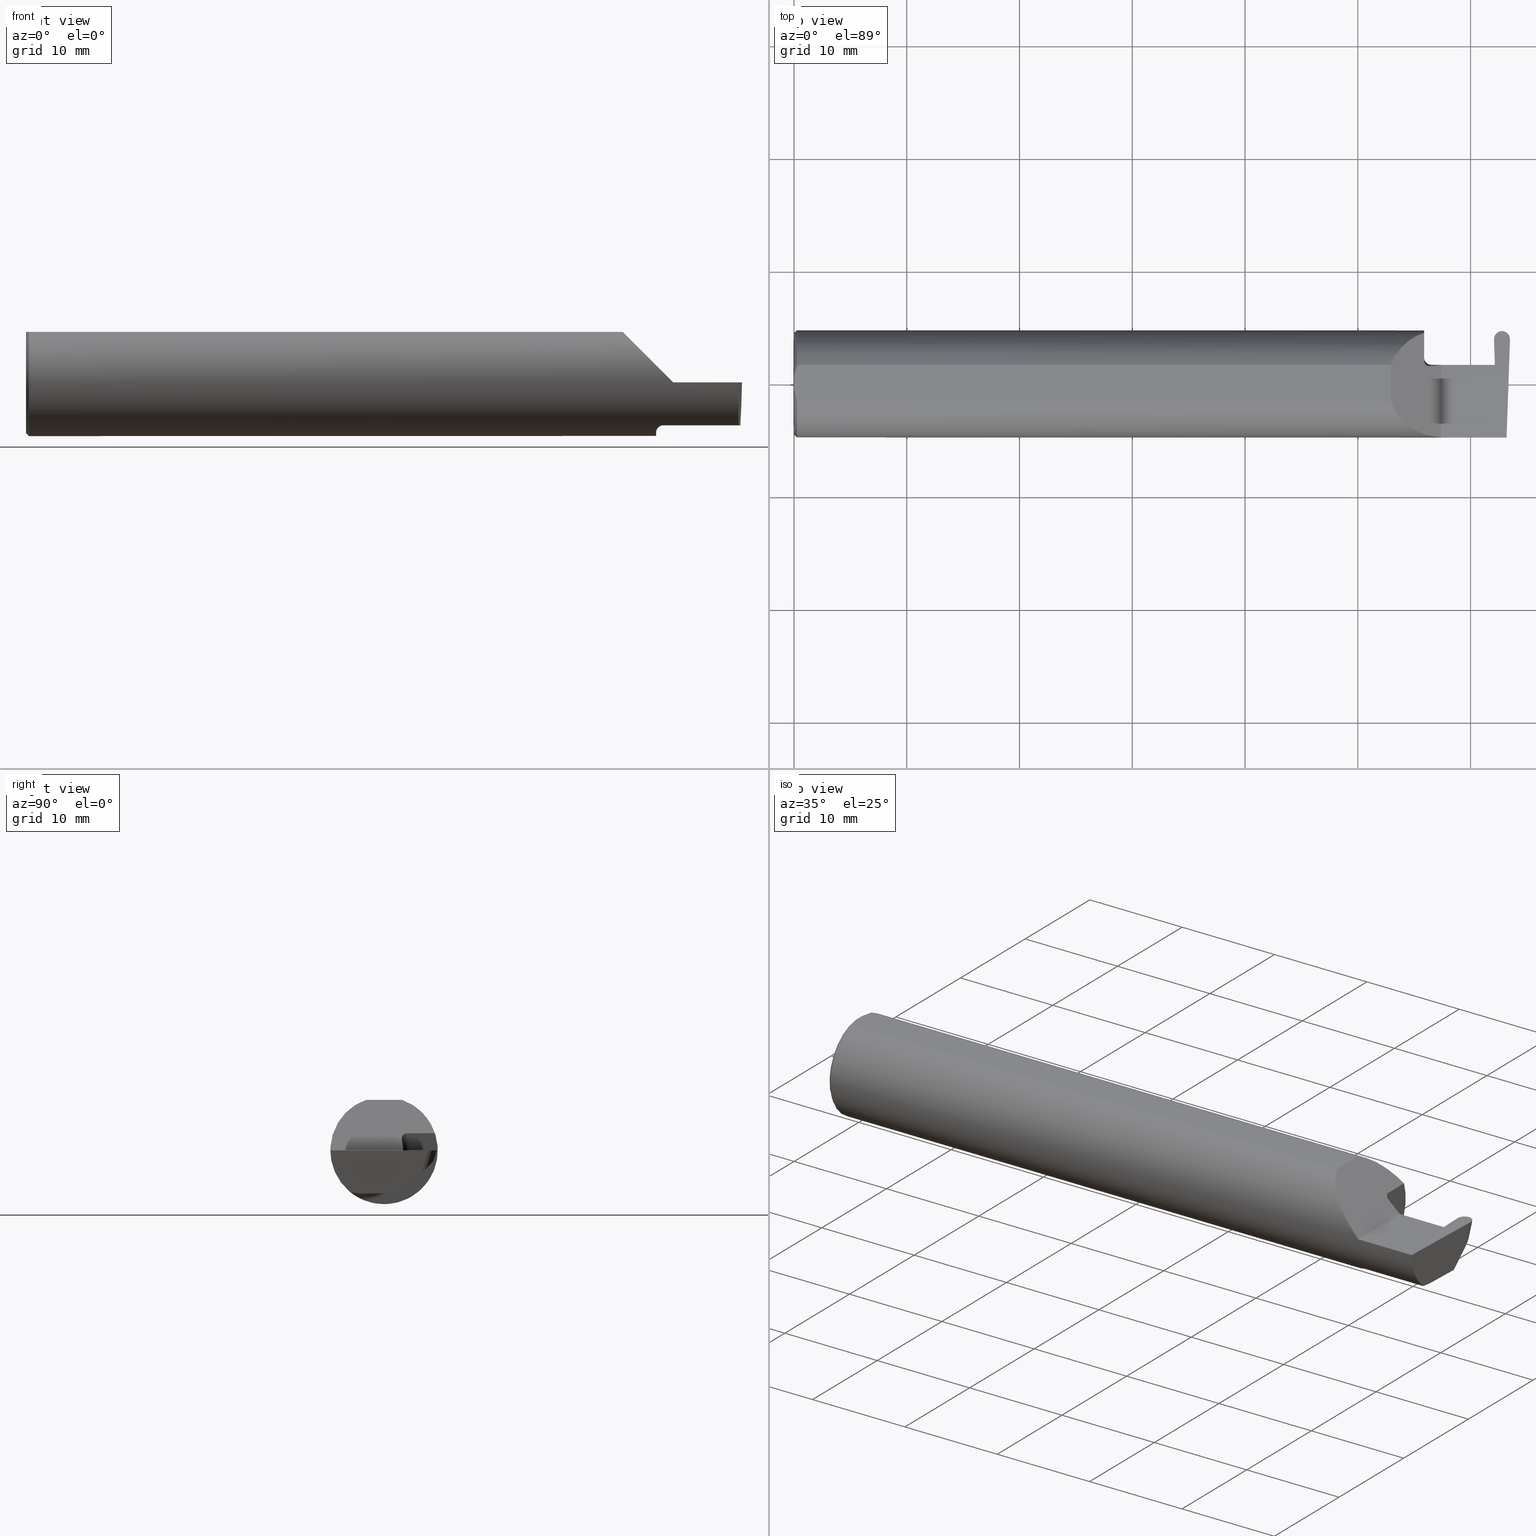
[diagram: canonical four-view strip — front | top / right | iso, engineering-drawing reading convention]
A machine part, canonical four-view strip (front | top / right | iso — engineering-drawing reading convention). The complete STEP part file that produces these views, byte-faithful:
ISO-10303-21;
HEADER;
FILE_DESCRIPTION (( 'STEP AP203' ),
    '1' );
FILE_NAME ('222134-GFR055-4.STEP',
    '2024-06-26T18:53:13',
    ( '' ),
    ( '' ),
    'SwSTEP 2.0',
    'SolidWorks 2024',
    '' );
FILE_SCHEMA (( 'CONFIG_CONTROL_DESIGN' ));
ENDSEC;

DATA;
#1 = PLANE ( 'NONE',  #171 ) ;
#2 = CARTESIAN_POINT ( 'NONE',  ( 2.488006099050898090, -0.1873499999999999888, 0.000000000000000000 ) ) ;
#3 = PRODUCT_RELATED_PRODUCT_CATEGORY ( 'detail', '', ( #263 ) ) ;
#4 = CARTESIAN_POINT ( 'NONE',  ( 2.236476718690367793, 0.06526343940705725544, 0.02352328130963212902 ) ) ;
#5 = DIRECTION ( 'NONE',  ( 0.9992386149554828290, 0.03489418134010773692, 0.01745240643728358798 ) ) ;
#6 = DIRECTION ( 'NONE',  ( -0.7071067811865441310, 0.000000000000000000, -0.7071067811865510144 ) ) ;
#7 = ORIENTED_EDGE ( 'NONE', *, *, #142, .T. ) ;
#8 = CARTESIAN_POINT ( 'NONE',  ( 2.449736488887833907, 0.06030305154315083321, -0.1500000000000000500 ) ) ;
#9 = PERSON_AND_ORGANIZATION_ROLE ( 'design_owner' ) ;
#10 = CARTESIAN_POINT ( 'NONE',  ( 2.201843912362378308, -0.08846956905169066354, -0.1652353808078973751 ) ) ;
#11 = EDGE_CURVE ( 'NONE', #127, #545, #41, .T. ) ;
#12 = APPROVAL ( #630, 'UNSPECIFIED' ) ;
#13 = AXIS2_PLACEMENT_3D ( 'NONE', #361, #637, #580 ) ;
#14 = CARTESIAN_POINT ( 'NONE',  ( 2.200000000000000178, 0.1774824568795465018, 0.05999999999999962308 ) ) ;
#15 = CARTESIAN_POINT ( 'NONE',  ( 2.200000000000000178, -0.08335000000000011844, 0.000000000000000000 ) ) ;
#16 = EDGE_CURVE ( 'NONE', #325, #697, #410, .T. ) ;
#17 = CARTESIAN_POINT ( 'NONE',  ( 2.447024025498200750, 0.06664999999999991764, 0.000000000000000000 ) ) ;
#18 = DIRECTION ( 'NONE',  ( 0.000000000000000000, -0.9998476951563912696, 0.01745240643728358451 ) ) ;
#19 = ORIENTED_EDGE ( 'NONE', *, *, #528, .T. ) ;
#20 = LINE ( 'NONE', #415, #95 ) ;
#21 = EDGE_CURVE ( 'NONE', #198, #147, #199, .T. ) ;
#22 = FACE_OUTER_BOUND ( 'NONE', #434, .T. ) ;
#23 = DIRECTION ( 'NONE',  ( 0.000000000000000000, 0.000000000000000000, -1.000000000000000000 ) ) ;
#24 = ORIENTED_EDGE ( 'NONE', *, *, #475, .T. ) ;
#25 = LINE ( 'NONE', #233, #613 ) ;
#26 = CIRCLE ( 'NONE', #157, 0.1750000000000001277 ) ;
#27 = PERSON_AND_ORGANIZATION ( #259, #395 ) ;
#28 = CARTESIAN_POINT ( 'NONE',  ( 2.225000000000000089, -0.1172600179964003314, -0.1461167706989305870 ) ) ;
#29 = ORIENTED_EDGE ( 'NONE', *, *, #92, .T. ) ;
#30 = DIRECTION ( 'NONE',  ( -0.03489949670249503644, 0.9993908270190959842, -0.000000000000000000 ) ) ;
#31 =( BOUNDED_CURVE ( )  B_SPLINE_CURVE ( 3, ( #107, #602, #396, #2 ),
 .UNSPECIFIED., .F., .T. ) 
 B_SPLINE_CURVE_WITH_KNOTS ( ( 4, 4 ),
 ( 5.852427379562163523, 6.746954780470612256 ),
 .UNSPECIFIED. ) 
 CURVE ( )  GEOMETRIC_REPRESENTATION_ITEM ( )  RATIONAL_B_SPLINE_CURVE ( ( 1.000000000000000000, 0.9344226172588800949, 0.9344226172588800949, 1.000000000000000000 ) ) 
 REPRESENTATION_ITEM ( '' )  );
#32 = EDGE_LOOP ( 'NONE', ( #537, #355, #39, #189, #111, #252 ) ) ;
#33 = ORIENTED_EDGE ( 'NONE', *, *, #87, .F. ) ;
#34 = CC_DESIGN_DATE_AND_TIME_ASSIGNMENT ( #532, #476, ( #212 ) ) ;
#35 = APPROVAL_STATUS ( 'not_yet_approved' ) ;
#36 = EDGE_LOOP ( 'NONE', ( #371, #312, #687, #56, #530 ) ) ;
#37 = EDGE_CURVE ( 'NONE', #414, #604, #258, .T. ) ;
#38 = CARTESIAN_POINT ( 'NONE',  ( 2.449781798287666845, -0.08334999999999999354, -0.1500000000000000777 ) ) ;
#39 = ORIENTED_EDGE ( 'NONE', *, *, #380, .T. ) ;
#40 = DIRECTION ( 'NONE',  ( -0.03701744261649873857, 0.7066221440565397804, 0.7066221440565479961 ) ) ;
#41 = B_SPLINE_CURVE_WITH_KNOTS ( 'NONE', 3,
 ( #673, #628, #611, #508, #671, #447, #676, #337, #10, #456, #444, #183 ),
 .UNSPECIFIED., .F., .F.,
 ( 4, 2, 2, 2, 2, 4 ),
 ( 1.967976973658592312E-07, 0.0002120314145722269742, 0.0004238660314470880540, 0.0008475352651967975283, 0.001271204498946507111, 0.001694873732696216802 ),
 .UNSPECIFIED. ) ;
#42 = ORIENTED_EDGE ( 'NONE', *, *, #167, .T. ) ;
#43 = DIRECTION ( 'NONE',  ( -0.02739170151060046909, -0.3089010440752014142, -0.9506996579664918068 ) ) ;
#44 = AXIS2_PLACEMENT_3D ( 'NONE', #174, #236, #84 ) ;
#45 = CC_DESIGN_PERSON_AND_ORGANIZATION_ASSIGNMENT ( #481, #529, ( #212 ) ) ;
#46 = ORIENTED_EDGE ( 'NONE', *, *, #592, .F. ) ;
#47 = DIRECTION ( 'NONE',  ( 0.01806679408117481400, 0.000000000000000000, -0.9998367821557817559 ) ) ;
#48 = ORIENTED_EDGE ( 'NONE', *, *, #499, .F. ) ;
#49 = EDGE_CURVE ( 'NONE', #422, #419, #277, .T. ) ;
#50 = B_SPLINE_CURVE_WITH_KNOTS ( 'NONE', 3,
 ( #54, #220, #388, #59 ),
 .UNSPECIFIED., .F., .F.,
 ( 4, 4 ),
 ( 0.01188664626022267051, 0.01304646959483758001 ),
 .UNSPECIFIED. ) ;
#51 = DIRECTION ( 'NONE',  ( -0.02739170151060047603, -0.3089010440752014142, -0.9506996579664920288 ) ) ;
#52 = CARTESIAN_POINT ( 'NONE',  ( 2.447263740745530214, 0.1948000712985011318, -0.01550298024464819013 ) ) ;
#53 = ORIENTED_EDGE ( 'NONE', *, *, #200, .T. ) ;
#54 = CARTESIAN_POINT ( 'NONE',  ( 0.000000000000000000, 0.01880691362239451242, 0.1763499999999999235 ) ) ;
#55 = CARTESIAN_POINT ( 'NONE',  ( 2.449781826481273406, -0.08343938758048886906, -0.1500000000000000500 ) ) ;
#56 = ORIENTED_EDGE ( 'NONE', *, *, #188, .F. ) ;
#57 = VECTOR ( 'NONE', #137, 39.37007874015748143 ) ;
#58 = AXIS2_PLACEMENT_3D ( 'NONE', #297, #18, #511 ) ;
#59 = CARTESIAN_POINT ( 'NONE',  ( 0.009999999999999346217, 0.06325108694718235836, 0.1763499999999999235 ) ) ;
#60 = EDGE_CURVE ( 'NONE', #374, #514, #663, .T. ) ;
#61 = CARTESIAN_POINT ( 'NONE',  ( 2.471949999999999203, 0.1818703299733175349, -0.008554944679900250773 ) ) ;
#62 = CARTESIAN_POINT ( 'NONE',  ( 2.103305020982357387, 0.1180511404724818164, 0.1566949790176410395 ) ) ;
#63 = ORIENTED_EDGE ( 'NONE', *, *, #343, .T. ) ;
#64 = CARTESIAN_POINT ( 'NONE',  ( 2.489018003393509648, -0.08334999999999895270, -0.1500000000000000500 ) ) ;
#65 = EDGE_CURVE ( 'NONE', #581, #441, #400, .T. ) ;
#66 = CARTESIAN_POINT ( 'NONE',  ( 2.471950000000000536, 0.1786780247761788898, -0.01837984983077268000 ) ) ;
#67 = VERTEX_POINT ( 'NONE', #390 ) ;
#68 = EDGE_LOOP ( 'NONE', ( #308, #311, #491, #694, #655 ) ) ;
#69 = DIRECTION ( 'NONE',  ( 0.000000000000000000, 0.000000000000000000, 1.000000000000000000 ) ) ;
#70 = APPLICATION_PROTOCOL_DEFINITION ( 'international standard', 'config_control_design', 1994, #643 ) ;
#71 = DIRECTION ( 'NONE',  ( 1.000000000000000000, -0.000000000000000000, -0.000000000000000000 ) ) ;
#72 = EDGE_CURVE ( 'NONE', #579, #471, #515, .T. ) ;
#73 = CARTESIAN_POINT ( 'NONE',  ( 2.488291197303067914, 0.1715101730526973345, -0.03879287849045227193 ) ) ;
#74 = APPROVAL_STATUS ( 'not_yet_approved' ) ;
#75 = CARTESIAN_POINT ( 'NONE',  ( 2.200000000000000178, 0.08104282222773610822, 0.05999999999999957451 ) ) ;
#76 = LINE ( 'NONE', #292, #57 ) ;
#77 = CARTESIAN_POINT ( 'NONE',  ( 2.443960049305725857, 0.1543907983005533002, 0.000000000000000000 ) ) ;
#78 = LOCAL_TIME ( 11, 53, 13.00000000000000000, #524 ) ;
#79 = CARTESIAN_POINT ( 'NONE',  ( 2.489018003393509648, -0.08334999999999895270, -0.1500000000000000500 ) ) ;
#80 = DATE_TIME_ROLE ( 'creation_date' ) ;
#81 = CARTESIAN_POINT ( 'NONE',  ( 2.260000000000000231, -0.1873499999999999888, 2.939152317953647352E-17 ) ) ;
#82 = ORIENTED_EDGE ( 'NONE', *, *, #488, .F. ) ;
#83 = AXIS2_PLACEMENT_3D ( 'NONE', #497, #224, #109 ) ;
#84 = DIRECTION ( 'NONE',  ( 1.000000000000000000, 0.000000000000000000, -0.000000000000000000 ) ) ;
#85 = CC_DESIGN_APPROVAL ( #12, ( #577 ) ) ;
#86 = DIRECTION ( 'NONE',  ( 0.000000000000000000, -0.7071067811865434649, -0.7071067811865516806 ) ) ;
#87 = EDGE_CURVE ( 'NONE', #683, #545, #26, .T. ) ;
#88 = ORIENTED_EDGE ( 'NONE', *, *, #290, .F. ) ;
#89 = CARTESIAN_POINT ( 'NONE',  ( 2.500000000000000000, -0.2500000000000000555, 0.000000000000000000 ) ) ;
#90 = ORIENTED_EDGE ( 'NONE', *, *, #368, .T. ) ;
#91 = VERTEX_POINT ( 'NONE', #617 ) ;
#92 = EDGE_CURVE ( 'NONE', #683, #198, #274, .T. ) ;
#93 = DIRECTION ( 'NONE',  ( 0.000000000000000000, -1.000000000000000000, 0.000000000000000000 ) ) ;
#94 = VECTOR ( 'NONE', #30, 39.37007874015748854 ) ;
#95 = VECTOR ( 'NONE', #248, 39.37007874015748143 ) ;
#96 = VERTEX_POINT ( 'NONE', #635 ) ;
#97 = EDGE_CURVE ( 'NONE', #374, #268, #373, .T. ) ;
#98 = CARTESIAN_POINT ( 'NONE',  ( 2.440649193535314954, 0.2362325856005324520, 0.02592953405738363665 ) ) ;
#99 = ORIENTED_EDGE ( 'NONE', *, *, #60, .T. ) ;
#100 = CARTESIAN_POINT ( 'NONE',  ( 3.749399456654646757E-32, -0.1873499999999999610, 3.061616997868383634E-16 ) ) ;
#101 = ORIENTED_EDGE ( 'NONE', *, *, #197, .F. ) ;
#102 = FACE_OUTER_BOUND ( 'NONE', #583, .T. ) ;
#103 = VECTOR ( 'NONE', #397, 39.37007874015748143 ) ;
#104 = FACE_OUTER_BOUND ( 'NONE', #495, .T. ) ;
#105 = ORIENTED_EDGE ( 'NONE', *, *, #116, .T. ) ;
#106 = DIRECTION ( 'NONE',  ( -0.03701744261649878021, -0.7066221440565397804, -0.7066221440565479961 ) ) ;
#107 = CARTESIAN_POINT ( 'NONE',  ( 2.487901662807321390, -0.1172600179964004424, -0.1461167706989304482 ) ) ;
#108 = VERTEX_POINT ( 'NONE', #81 ) ;
#109 = DIRECTION ( 'NONE',  ( 0.000000000000000000, -0.3090169943749482284, -0.9510565162951533091 ) ) ;
#110 = CARTESIAN_POINT ( 'NONE',  ( 2.200000000000000178, 0.08104282222773610822, 0.05999999999999957451 ) ) ;
#111 = ORIENTED_EDGE ( 'NONE', *, *, #603, .F. ) ;
#112 = CARTESIAN_POINT ( 'NONE',  ( 2.487901662807321390, -0.1172600179964004424, -0.1461167706989304482 ) ) ;
#113 = CARTESIAN_POINT ( 'NONE',  ( 2.260000000000000231, -0.1873499999999999888, 2.939152317953647352E-17 ) ) ;
#114 = ORIENTED_EDGE ( 'NONE', *, *, #528, .F. ) ;
#115 = VECTOR ( 'NONE', #178, 39.37007874015748854 ) ;
#116 = EDGE_CURVE ( 'NONE', #314, #127, #192, .T. ) ;
#117 = DIRECTION ( 'NONE',  ( -1.000000000000000000, -4.900301341648687270E-16, -0.000000000000000000 ) ) ;
#118 = LINE ( 'NONE', #225, #184 ) ;
#119 = CARTESIAN_POINT ( 'NONE',  ( 2.083649999999998670, 0.06325108694718283020, 0.1763499999999999235 ) ) ;
#120 = ORIENTED_EDGE ( 'NONE', *, *, #179, .F. ) ;
#121 = CARTESIAN_POINT ( 'NONE',  ( 2.471703513647399486, 0.1846500000000000363, 0.000000000000000000 ) ) ;
#122 = COORDINATED_UNIVERSAL_TIME_OFFSET ( 8, 0, .BEHIND. ) ;
#123 = CARTESIAN_POINT ( 'NONE',  ( 2.144848040052163896, 0.1588376980957759976, 0.1151519599478345868 ) ) ;
#124 = CARTESIAN_POINT ( 'NONE',  ( 2.498888753813989894, 0.1529658124618456516, -0.05733723908130414909 ) ) ;
#125 = PERSON_AND_ORGANIZATION ( #259, #395 ) ;
#126 = ADVANCED_FACE ( 'NONE', ( #584 ), #148, .F. ) ;
#127 = VERTEX_POINT ( 'NONE', #28 ) ;
#128 = VECTOR ( 'NONE', #300, 39.37007874015748854 ) ;
#129 =( GEOMETRIC_REPRESENTATION_CONTEXT ( 3 ) GLOBAL_UNCERTAINTY_ASSIGNED_CONTEXT ( ( #408 ) ) GLOBAL_UNIT_ASSIGNED_CONTEXT ( ( #466, #307, #569 ) ) REPRESENTATION_CONTEXT ( 'NONE', 'WORKASPACE' ) );
#130 = FACE_OUTER_BOUND ( 'NONE', #463, .T. ) ;
#131 = DIRECTION ( 'NONE',  ( 1.000000000000000000, 0.000000000000000000, 0.000000000000000000 ) ) ;
#132 = CARTESIAN_POINT ( 'NONE',  ( 0.000000000000000000, 0.000000000000000000, 0.000000000000000000 ) ) ;
#133 = LINE ( 'NONE', #239, #115 ) ;
#134 = CALENDAR_DATE ( 2024, 26, 6 ) ;
#135 = DIRECTION ( 'NONE',  ( -1.000000000000000000, -0.000000000000000000, -0.000000000000000000 ) ) ;
#136 = ORIENTED_EDGE ( 'NONE', *, *, #155, .T. ) ;
#137 = DIRECTION ( 'NONE',  ( 4.900301341648687270E-16, -1.000000000000000000, -4.900301341648639939E-16 ) ) ;
#138 = CALENDAR_DATE ( 2024, 26, 6 ) ;
#139 = ORIENTED_EDGE ( 'NONE', *, *, #349, .F. ) ;
#140 = VECTOR ( 'NONE', #71, 39.37007874015748143 ) ;
#141 = FACE_OUTER_BOUND ( 'NONE', #575, .T. ) ;
#142 = EDGE_CURVE ( 'NONE', #636, #579, #146, .T. ) ;
#143 = ORIENTED_EDGE ( 'NONE', *, *, #49, .F. ) ;
#144 = EDGE_CURVE ( 'NONE', #147, #581, #150, .T. ) ;
#145 = ORIENTED_EDGE ( 'NONE', *, *, #155, .F. ) ;
#146 = LINE ( 'NONE', #205, #378 ) ;
#147 = VERTEX_POINT ( 'NONE', #246 ) ;
#148 = PLANE ( 'NONE',  #565 ) ;
#149 = ORIENTED_EDGE ( 'NONE', *, *, #330, .T. ) ;
#150 = LINE ( 'NONE', #426, #335 ) ;
#151 = EDGE_LOOP ( 'NONE', ( #90, #587, #607, #385 ) ) ;
#152 = LINE ( 'NONE', #699, #409 ) ;
#153 = LINE ( 'NONE', #55, #498 ) ;
#154 = ORIENTED_EDGE ( 'NONE', *, *, #576, .F. ) ;
#155 = EDGE_CURVE ( 'NONE', #198, #127, #369, .T. ) ;
#156 = DIRECTION ( 'NONE',  ( 1.000000000000000000, 0.000000000000000000, 0.000000000000000000 ) ) ;
#157 = AXIS2_PLACEMENT_3D ( 'NONE', #15, #235, #567 ) ;
#158 = CARTESIAN_POINT ( 'NONE',  ( 2.111272250967329622, -0.1402645296119147678, 0.1487277490326685825 ) ) ;
#159 = AXIS2_PLACEMENT_3D ( 'NONE', #519, #288, #86 ) ;
#160 = ORIENTED_EDGE ( 'NONE', *, *, #608, .T. ) ;
#161 = LINE ( 'NONE', #461, #600 ) ;
#162 = LINE ( 'NONE', #279, #473 ) ;
#163 = ORIENTED_EDGE ( 'NONE', *, *, #37, .F. ) ;
#164 = CARTESIAN_POINT ( 'NONE',  ( 2.488245243745037971, -0.1061291577212404302, -0.1486999626928448004 ) ) ;
#165 = FACE_OUTER_BOUND ( 'NONE', #648, .T. ) ;
#166 = CARTESIAN_POINT ( 'NONE',  ( 2.260000000000000231, 0.06664999999999984825, 2.939152317953647352E-17 ) ) ;
#167 = EDGE_CURVE ( 'NONE', #96, #108, #631, .T. ) ;
#168 = ORIENTED_EDGE ( 'NONE', *, *, #232, .F. ) ;
#169 = DIRECTION ( 'NONE',  ( 0.000000000000000000, 0.000000000000000000, -1.000000000000000000 ) ) ;
#170 = CARTESIAN_POINT ( 'NONE',  ( 0.005151108632379595466, -0.04888864921576189376, 0.1763499999999999235 ) ) ;
#171 = AXIS2_PLACEMENT_3D ( 'NONE', #550, #5, #265 ) ;
#172 = DIRECTION ( 'NONE',  ( 0.000000000000000000, 0.000000000000000000, -1.000000000000000000 ) ) ;
#173 = PRODUCT_DEFINITION_FORMATION_WITH_SPECIFIED_SOURCE ( 'ANY', '', #263, .NOT_KNOWN. ) ;
#174 = CARTESIAN_POINT ( 'NONE',  ( 2.733184360054362827, -0.08334999999999895270, -0.1500000000000000500 ) ) ;
#175 =( LENGTH_UNIT ( ) NAMED_UNIT ( * ) SI_UNIT ( $, .METRE. ) );
#176 =( BOUNDED_CURVE ( )  B_SPLINE_CURVE ( 3, ( #185, #73, #124, #243 ),
 .UNSPECIFIED., .F., .T. ) 
 B_SPLINE_CURVE_WITH_KNOTS ( ( 4, 4 ),
 ( 3.157953889688686733, 4.726229945297545143 ),
 .UNSPECIFIED. ) 
 CURVE ( )  GEOMETRIC_REPRESENTATION_ITEM ( )  RATIONAL_B_SPLINE_CURVE ( ( 1.000000000000000000, 0.8053315133011071936, 0.8053315133011071936, 1.000000000000000000 ) ) 
 REPRESENTATION_ITEM ( '' )  );
#177 = CARTESIAN_POINT ( 'NONE',  ( -3.937007874019685528E-05, 0.1846500000000000363, 0.000000000000000000 ) ) ;
#178 = DIRECTION ( 'NONE',  ( -0.01806954526206910883, 0.01744955702544858864, 0.9996844524616943506 ) ) ;
#179 = EDGE_CURVE ( 'NONE', #377, #91, #574, .T. ) ;
#180 = LENGTH_MEASURE_WITH_UNIT ( LENGTH_MEASURE( 0.02539999999999999897 ), #175 );
#181 = VERTEX_POINT ( 'NONE', #538 ) ;
#182 = CARTESIAN_POINT ( 'NONE',  ( 0.000000000000000000, 0.1873499999999998500, 0.1763499999999999235 ) ) ;
#183 = CARTESIAN_POINT ( 'NONE',  ( 2.200000000000000178, -0.06851976604679038685, -0.1743704796142199753 ) ) ;
#184 = VECTOR ( 'NONE', #704, 39.37007874015748143 ) ;
#185 = CARTESIAN_POINT ( 'NONE',  ( 2.471950000000000536, 0.1722830110551551164, -0.03802004048799446229 ) ) ;
#186 = APPLICATION_PROTOCOL_DEFINITION ( 'international standard', 'config_control_design', 1994, #326 ) ;
#187 = CARTESIAN_POINT ( 'NONE',  ( 2.469848951832716910, 0.1789346378829039796, 0.07301982747321240919 ) ) ;
#188 = EDGE_CURVE ( 'NONE', #514, #181, #261, .T. ) ;
#189 = ORIENTED_EDGE ( 'NONE', *, *, #315, .T. ) ;
#190 = DIRECTION ( 'NONE',  ( 1.000000000000000000, 4.900301341648687270E-16, 0.000000000000000000 ) ) ;
#191 = DATE_AND_TIME ( #134, #578 ) ;
#192 = LINE ( 'NONE', #696, #394 ) ;
#193 = EDGE_LOOP ( 'NONE', ( #249, #19, #42, #431, #88, #460, #595, #82, #686, #154, #680 ) ) ;
#194 = CARTESIAN_POINT ( 'NONE',  ( 2.494034478493234008, 0.06030305154315081240, -0.1500000000000000500 ) ) ;
#195 = ORIENTED_EDGE ( 'NONE', *, *, #269, .F. ) ;
#196 = CONICAL_SURFACE ( 'NONE', #437, 0.1773500000000005072, 0.7853981633974551624 ) ;
#197 = EDGE_CURVE ( 'NONE', #604, #487, #450, .T. ) ;
#198 = VERTEX_POINT ( 'NONE', #533 ) ;
#199 =( BOUNDED_CURVE ( )  B_SPLINE_CURVE ( 3, ( #552, #4, #223, #166 ),
 .UNSPECIFIED., .F., .T. ) 
 B_SPLINE_CURVE_WITH_KNOTS ( ( 4, 4 ),
 ( 1.335292090074097437, 1.570796326794897002 ),
 .UNSPECIFIED. ) 
 CURVE ( )  GEOMETRIC_REPRESENTATION_ITEM ( )  RATIONAL_B_SPLINE_CURVE ( ( 1.000000000000000000, 0.9953834841226971708, 0.9953834841226971708, 1.000000000000000000 ) ) 
 REPRESENTATION_ITEM ( '' )  );
#200 = EDGE_CURVE ( 'NONE', #67, #209, #423, .T. ) ;
#201 = ORIENTED_EDGE ( 'NONE', *, *, #144, .F. ) ;
#202 = APPROVAL_ROLE ( '' ) ;
#203 = EDGE_LOOP ( 'NONE', ( #329, #63, #120, #365, #689 ) ) ;
#204 = MANIFOLD_SOLID_BREP ( 'Radii', #407 ) ;
#205 = CARTESIAN_POINT ( 'NONE',  ( 2.083649999999998670, -0.2500000000000000555, 0.1763499999999999235 ) ) ;
#206 = ORIENTED_EDGE ( 'NONE', *, *, #16, .T. ) ;
#207 = ADVANCED_FACE ( 'NONE', ( #486 ), #570, .T. ) ;
#208 = CARTESIAN_POINT ( 'NONE',  ( 2.083649999999998670, 0.06325108694718283020, 0.1763499999999999235 ) ) ;
#209 = VERTEX_POINT ( 'NONE', #413 ) ;
#210 = EDGE_CURVE ( 'NONE', #91, #273, #448, .T. ) ;
#211 = CARTESIAN_POINT ( 'NONE',  ( 2.499982912697886750, 0.1556210691174950700, 0.000000000000000000 ) ) ;
#212 = SECURITY_CLASSIFICATION ( '', '', #634 ) ;
#213 = DIRECTION ( 'NONE',  ( 0.000000000000000000, 0.000000000000000000, 1.000000000000000000 ) ) ;
#214 = ORIENTED_EDGE ( 'NONE', *, *, #368, .F. ) ;
#215 = CARTESIAN_POINT ( 'NONE',  ( 2.443949607349645614, 0.1545085540790380463, 0.0003624150208497920996 ) ) ;
#216 = ADVANCED_FACE ( 'NONE', ( #644 ), #196, .T. ) ;
#217 = AXIS2_PLACEMENT_3D ( 'NONE', #615, #156, #169 ) ;
#218 = CIRCLE ( 'NONE', #13, 0.1873499999999999888 ) ;
#219 = EDGE_LOOP ( 'NONE', ( #226, #206, #348, #114, #483, #139 ) ) ;
#220 = CARTESIAN_POINT ( 'NONE',  ( 0.001616639753276218755, 0.03405189565400963680, 0.1763499999999999235 ) ) ;
#221 = ADVANCED_FACE ( 'NONE', ( #102 ), #557, .T. ) ;
#222 = CARTESIAN_POINT ( 'NONE',  ( 2.437903374698175529, 0.06664999999999991764, 0.000000000000000000 ) ) ;
#223 = CARTESIAN_POINT ( 'NONE',  ( 2.248197494504676097, 0.06665000000000000091, 0.01180250549532441302 ) ) ;
#224 = DIRECTION ( 'NONE',  ( 0.000000000000000000, -0.9510565162951533091, 0.3090169943749482284 ) ) ;
#225 = CARTESIAN_POINT ( 'NONE',  ( -3.937007874019685528E-05, 0.06030305154315079852, -0.1500000000000000500 ) ) ;
#226 = ORIENTED_EDGE ( 'NONE', *, *, #315, .F. ) ;
#227 = LINE ( 'NONE', #331, #484 ) ;
#228 = MECHANICAL_CONTEXT ( 'NONE', #326, 'mechanical' ) ;
#229 = AXIS2_PLACEMENT_3D ( 'NONE', #542, #117, #605 ) ;
#230 = DIRECTION ( 'NONE',  ( -1.000000000000000000, -0.000000000000000000, -0.000000000000000000 ) ) ;
#231 = AXIS2_PLACEMENT_3D ( 'NONE', #322, #504, #47 ) ;
#232 = EDGE_CURVE ( 'NONE', #314, #436, #594, .T. ) ;
#233 = CARTESIAN_POINT ( 'NONE',  ( 2.733184360054362827, -0.08334999999999895270, -0.1500000000000000500 ) ) ;
#234 = DIRECTION ( 'NONE',  ( 0.000000000000000000, 0.000000000000000000, 1.000000000000000000 ) ) ;
#235 = DIRECTION ( 'NONE',  ( -1.000000000000000000, -4.900301341648687270E-16, -0.000000000000000000 ) ) ;
#236 = DIRECTION ( 'NONE',  ( 0.000000000000000000, 0.000000000000000000, 1.000000000000000000 ) ) ;
#237 = DATE_AND_TIME ( #513, #451 ) ;
#238 = VERTEX_POINT ( 'NONE', #652 ) ;
#239 = CARTESIAN_POINT ( 'NONE',  ( 2.447024025498200750, 0.06664999999999991764, -9.645561665750333182E-21 ) ) ;
#240 = DIRECTION ( 'NONE',  ( -1.000000000000000000, -4.900301341648687270E-16, -0.000000000000000000 ) ) ;
#241 = AXIS2_PLACEMENT_3D ( 'NONE', #681, #356, #69 ) ;
#242 = ORIENTED_EDGE ( 'NONE', *, *, #653, .F. ) ;
#243 = CARTESIAN_POINT ( 'NONE',  ( 2.497553638666706544, 0.1274799371216591426, -0.08282311442149095648 ) ) ;
#244 = PERSON_AND_ORGANIZATION_ROLE ( 'design_supplier' ) ;
#245 = ADVANCED_FACE ( 'NONE', ( #703 ), #506, .F. ) ;
#246 = CARTESIAN_POINT ( 'NONE',  ( 2.260000000000000231, 0.06664999999999984825, 2.939152317953647352E-17 ) ) ;
#247 = VERTEX_POINT ( 'NONE', #8 ) ;
#248 = DIRECTION ( 'NONE',  ( -1.000000000000000000, -0.000000000000000000, -0.000000000000000000 ) ) ;
#249 = ORIENTED_EDGE ( 'NONE', *, *, #116, .F. ) ;
#250 = ORIENTED_EDGE ( 'NONE', *, *, #60, .F. ) ;
#251 = EDGE_CURVE ( 'NONE', #108, #147, #227, .T. ) ;
#252 = ORIENTED_EDGE ( 'NONE', *, *, #653, .T. ) ;
#253 = DIRECTION ( 'NONE',  ( -0.02739170151060045522, 0.3089010440752014142, 0.9506996579664920288 ) ) ;
#254 = ORIENTED_EDGE ( 'NONE', *, *, #403, .T. ) ;
#255 = CARTESIAN_POINT ( 'NONE',  ( 2.455608802696932713, 0.1715101730526971957, -0.03879287849045232744 ) ) ;
#256 = ADVANCED_FACE ( 'NONE', ( #270 ), #1, .F. ) ;
#257 = ORIENTED_EDGE ( 'NONE', *, *, #269, .T. ) ;
#258 = CIRCLE ( 'NONE', #667, 0.1773500000000005072 ) ;
#259 = PERSON ( 'UNSPECIFIED', 'UNSPECIFIED', 'UNSPECIFIED', ('UNSPECIFIED'), ('UNSPECIFIED'), ('UNSPECIFIED') ) ;
#260 = VECTOR ( 'NONE', #546, 39.37007874015748854 ) ;
#261 = LINE ( 'NONE', #517, #303 ) ;
#262 = APPROVAL_PERSON_ORGANIZATION ( #344, #386, #293 ) ;
#263 = PRODUCT ( '222134-GFR055-4', '222134-GFR055-4', '', ( #228 ) ) ;
#264 = EDGE_LOOP ( 'NONE', ( #101, #424, #48, #160 ) ) ;
#265 = DIRECTION ( 'NONE',  ( -0.03489949670249503644, 0.9993908270190959842, 0.000000000000000000 ) ) ;
#266 = DIMENSIONAL_EXPONENTS ( 1.000000000000000000, 0.000000000000000000, 0.000000000000000000, 0.000000000000000000, 0.000000000000000000, 0.000000000000000000, 0.000000000000000000 ) ;
#267 = CARTESIAN_POINT ( 'NONE',  ( 0.000000000000000000, -0.01880691362239451242, 0.1763499999999999235 ) ) ;
#268 = VERTEX_POINT ( 'NONE', #393 ) ;
#269 = EDGE_CURVE ( 'NONE', #414, #419, #50, .T. ) ;
#270 = FACE_OUTER_BOUND ( 'NONE', #203, .T. ) ;
#271 = CARTESIAN_POINT ( 'NONE',  ( 2.200000000000000178, 0.000000000000000000, 0.000000000000000000 ) ) ;
#272 = DESIGN_CONTEXT ( 'detailed design', #643, 'design' ) ;
#273 = VERTEX_POINT ( 'NONE', #664 ) ;
#274 = B_SPLINE_CURVE_WITH_KNOTS ( 'NONE', 3,
 ( #75, #294, #593, #536, #319, #482, #688, #416, #590, #430 ),
 .UNSPECIFIED., .F., .F.,
 ( 4, 2, 2, 2, 4 ),
 ( 0.0002788109322551137045, 0.0005687008269983689825, 0.0008585907217416242606, 0.001148480616484879539, 0.001438370511228134925 ),
 .UNSPECIFIED. ) ;
#275 = ADVANCED_FACE ( 'NONE', ( #383 ), #496, .T. ) ;
#276 = CARTESIAN_POINT ( 'NONE',  ( 2.470341554657879968, 0.1371020260021961756, -0.05572771342908366954 ) ) ;
#277 = CIRCLE ( 'NONE', #358, 0.1873499999999999888 ) ;
#278 = AXIS2_PLACEMENT_3D ( 'NONE', #211, #554, #281 ) ;
#279 = CARTESIAN_POINT ( 'NONE',  ( 2.499982912697886750, 0.1556210691174950700, 0.000000000000000000 ) ) ;
#280 = VECTOR ( 'NONE', #500, 39.37007874015748143 ) ;
#281 = DIRECTION ( 'NONE',  ( -0.03489949670249509889, -0.9993908270190959842, 0.000000000000000000 ) ) ;
#282 = CARTESIAN_POINT ( 'NONE',  ( 2.437903374698175529, 0.06664999999999991764, 0.000000000000000000 ) ) ;
#283 = DIRECTION ( 'NONE',  ( 0.000000000000000000, 0.000000000000000000, -1.000000000000000000 ) ) ;
#284 = DIRECTION ( 'NONE',  ( 1.000000000000000000, 0.000000000000000000, 0.000000000000000000 ) ) ;
#285 = DIRECTION ( 'NONE',  ( 1.000000000000000000, 0.000000000000000000, -0.000000000000000000 ) ) ;
#286 = ORIENTED_EDGE ( 'NONE', *, *, #363, .F. ) ;
#287 = PLANE ( 'NONE',  #44 ) ;
#288 = DIRECTION ( 'NONE',  ( 0.000000000000000000, -0.7071067811865516806, 0.7071067811865434649 ) ) ;
#289 = CARTESIAN_POINT ( 'NONE',  ( 2.200000000000000178, 0.1774824568795465018, 0.05999999999999962308 ) ) ;
#290 = EDGE_CURVE ( 'NONE', #632, #636, #338, .T. ) ;
#291 = CC_DESIGN_PERSON_AND_ORGANIZATION_ASSIGNMENT ( #621, #566, ( #577 ) ) ;
#292 = CARTESIAN_POINT ( 'NONE',  ( 2.200000000000000178, -0.2500000000000001110, 0.05999999999999940797 ) ) ;
#293 = APPROVAL_ROLE ( '' ) ;
#294 = CARTESIAN_POINT ( 'NONE',  ( 2.199999999999999734, 0.07723724220654795691, 0.05999999999999976186 ) ) ;
#295 = ADVANCED_FACE ( 'NONE', ( #379 ), #649, .T. ) ;
#296 = CARTESIAN_POINT ( 'NONE',  ( 0.000000000000000000, 0.01880691362239451242, 0.1763499999999999235 ) ) ;
#297 = CARTESIAN_POINT ( 'NONE',  ( 2.447024025498200750, 0.06664999999999991764, 0.000000000000000000 ) ) ;
#298 = CARTESIAN_POINT ( 'NONE',  ( 2.443344681402952911, 0.1720126294265148237, 3.503485321703168162E-18 ) ) ;
#299 =( BOUNDED_CURVE ( )  B_SPLINE_CURVE ( 3, ( #61, #66, #376, #440 ),
 .UNSPECIFIED., .F., .F. ) 
 B_SPLINE_CURVE_WITH_KNOTS ( ( 4, 4 ),
 ( 1.570796326794904330, 1.601113425804760126 ),
 .UNSPECIFIED. ) 
 CURVE ( )  GEOMETRIC_REPRESENTATION_ITEM ( )  RATIONAL_B_SPLINE_CURVE ( ( 1.000000000000000000, 0.9999234075922798226, 0.9999234075922798226, 1.000000000000000000 ) ) 
 REPRESENTATION_ITEM ( '' )  );
#300 = DIRECTION ( 'NONE',  ( -0.01806954526206910883, 0.01744955702544858864, 0.9996844524616943506 ) ) ;
#301 = PERSON_AND_ORGANIZATION_ROLE ( 'creator' ) ;
#302 = CARTESIAN_POINT ( 'NONE',  ( 2.471703513647399486, 0.1846500000000000363, 0.000000000000000000 ) ) ;
#303 = VECTOR ( 'NONE', #43, 39.37007874015748854 ) ;
#304 = VECTOR ( 'NONE', #40, 39.37007874015748143 ) ;
#305 = ORIENTED_EDGE ( 'NONE', *, *, #352, .F. ) ;
#306 = CARTESIAN_POINT ( 'NONE',  ( 2.488968613720943246, 0.1846500000000000363, -2.084523217784547825E-18 ) ) ;
#307 =( NAMED_UNIT ( * ) PLANE_ANGLE_UNIT ( ) SI_UNIT ( $, .RADIAN. ) );
#308 = ORIENTED_EDGE ( 'NONE', *, *, #210, .F. ) ;
#309 = DIRECTION ( 'NONE',  ( -1.224646799147353947E-16, 0.000000000000000000, -1.000000000000000000 ) ) ;
#310 = CALENDAR_DATE ( 2024, 26, 6 ) ;
#311 = ORIENTED_EDGE ( 'NONE', *, *, #343, .F. ) ;
#312 = ORIENTED_EDGE ( 'NONE', *, *, #380, .F. ) ;
#313 = DIRECTION ( 'NONE',  ( -1.000000000000000000, -0.000000000000000000, -0.000000000000000000 ) ) ;
#314 = VERTEX_POINT ( 'NONE', #112 ) ;
#315 = EDGE_CURVE ( 'NONE', #325, #501, #152, .T. ) ;
#316 = PERSON_AND_ORGANIZATION ( #259, #395 ) ;
#317 = CARTESIAN_POINT ( 'NONE',  ( 2.445011246186010734, 0.1529658124618456239, -0.05733723908130418379 ) ) ;
#318 = ORIENTED_EDGE ( 'NONE', *, *, #576, .T. ) ;
#319 = CARTESIAN_POINT ( 'NONE',  ( 2.206491315391052144, 0.06519110945230535692, 0.05350868460894758760 ) ) ;
#320 = ORIENTED_EDGE ( 'NONE', *, *, #478, .T. ) ;
#321 = CARTESIAN_POINT ( 'NONE',  ( 2.497553638666706544, 0.1274799371216591426, -0.08282311442149095648 ) ) ;
#322 = CARTESIAN_POINT ( 'NONE',  ( 2.450028168451479083, -2.386252171265519806, -0.1234370960985020360 ) ) ;
#323 = ADVANCED_FACE ( 'NONE', ( #334 ), #375, .F. ) ;
#324 = PRODUCT_DEFINITION_SHAPE ( 'NONE', 'NONE',  #577 ) ;
#325 = VERTEX_POINT ( 'NONE', #321 ) ;
#326 = APPLICATION_CONTEXT ( 'configuration controlled 3d designs of mechanical parts and assemblies' ) ;
#327 = CARTESIAN_POINT ( 'NONE',  ( 2.469848951832716466, 0.2055642203391682965, 0.06436735163071383159 ) ) ;
#328 = CARTESIAN_POINT ( 'NONE',  ( 2.083649999999998670, -0.06325108694718283020, 0.1763499999999999235 ) ) ;
#329 = ORIENTED_EDGE ( 'NONE', *, *, #363, .T. ) ;
#330 = EDGE_CURVE ( 'NONE', #181, #374, #489, .T. ) ;
#331 = CARTESIAN_POINT ( 'NONE',  ( 2.260000000000000231, -0.2500000000000000555, 2.939152317953647352E-17 ) ) ;
#332 = CARTESIAN_POINT ( 'NONE',  ( 2.178182770154592163, -0.1873500000000000443, 0.08181722984540684696 ) ) ;
#333 = DIRECTION ( 'NONE',  ( 0.02739170151060046909, 0.3089010440752013587, 0.9506996579664918068 ) ) ;
#334 = FACE_OUTER_BOUND ( 'NONE', #219, .T. ) ;
#335 = VECTOR ( 'NONE', #372, 39.37007874015748143 ) ;
#336 = CARTESIAN_POINT ( 'NONE',  ( 2.499939950694276103, 0.1543907983005533002, 0.000000000000000000 ) ) ;
#337 = CARTESIAN_POINT ( 'NONE',  ( 2.202960551809340917, -0.09317341542745719019, -0.1626248379125198873 ) ) ;
#338 = LINE ( 'NONE', #438, #706 ) ;
#339 = DIRECTION ( 'NONE',  ( -0.03489949670249509889, -0.9993908270190959842, 0.000000000000000000 ) ) ;
#340 = EDGE_LOOP ( 'NONE', ( #525, #477, #428, #651, #480, #468, #646 ) ) ;
#341 = EDGE_LOOP ( 'NONE', ( #24, #534, #345 ) ) ;
#342 = DIRECTION ( 'NONE',  ( -1.000000000000000000, -4.900301341648687270E-16, -0.000000000000000000 ) ) ;
#343 = EDGE_CURVE ( 'NONE', #268, #91, #493, .T. ) ;
#344 = PERSON_AND_ORGANIZATION ( #259, #395 ) ;
#345 = ORIENTED_EDGE ( 'NONE', *, *, #197, .T. ) ;
#346 = CARTESIAN_POINT ( 'NONE',  ( 2.500555318597046828, 0.1720126294265149069, -3.503485321703163539E-18 ) ) ;
#347 = COORDINATED_UNIVERSAL_TIME_OFFSET ( 8, 0, .BEHIND. ) ;
#348 = ORIENTED_EDGE ( 'NONE', *, *, #539, .T. ) ;
#349 = EDGE_CURVE ( 'NONE', #501, #436, #161, .T. ) ;
#350 = LINE ( 'NONE', #572, #520 ) ;
#351 = CARTESIAN_POINT ( 'NONE',  ( 2.448662799063224149, 0.06357628547474623859, -0.09063792740366166667 ) ) ;
#352 = EDGE_CURVE ( 'NONE', #377, #209, #677, .T. ) ;
#353 = CARTESIAN_POINT ( 'NONE',  ( 2.225000000000000089, -0.08335000000000011844, 0.000000000000000000 ) ) ;
#354 = CARTESIAN_POINT ( 'NONE',  ( 2.449754845031671735, 0.002105059811798251721, -0.1500000000000001610 ) ) ;
#355 = ORIENTED_EDGE ( 'NONE', *, *, #210, .T. ) ;
#356 = DIRECTION ( 'NONE',  ( -1.000000000000000000, -0.000000000000000000, -0.000000000000000000 ) ) ;
#357 = PERSON_AND_ORGANIZATION ( #259, #395 ) ;
#358 = AXIS2_PLACEMENT_3D ( 'NONE', #404, #453, #283 ) ;
#359 = AXIS2_PLACEMENT_3D ( 'NONE', #402, #234, #131 ) ;
#360 = ORIENTED_EDGE ( 'NONE', *, *, #488, .T. ) ;
#361 = CARTESIAN_POINT ( 'NONE',  ( 0.009999999999999346217, 0.000000000000000000, 0.000000000000000000 ) ) ;
#362 = CALENDAR_DATE ( 2024, 26, 6 ) ;
#363 = EDGE_CURVE ( 'NONE', #441, #268, #620, .T. ) ;
#364 = ORIENTED_EDGE ( 'NONE', *, *, #398, .F. ) ;
#365 = ORIENTED_EDGE ( 'NONE', *, *, #352, .T. ) ;
#366 = DIRECTION ( 'NONE',  ( 0.000000000000000000, 1.000000000000000000, 0.000000000000000000 ) ) ;
#367 = ORIENTED_EDGE ( 'NONE', *, *, #11, .T. ) ;
#368 = EDGE_CURVE ( 'NONE', #436, #67, #25, .T. ) ;
#369 = CIRCLE ( 'NONE', #585, 0.1500000000000001610 ) ;
#370 = CARTESIAN_POINT ( 'NONE',  ( 2.446346361333295416, 0.1274799371216591704, -0.08282311442149094260 ) ) ;
#371 = ORIENTED_EDGE ( 'NONE', *, *, #16, .F. ) ;
#372 = DIRECTION ( 'NONE',  ( 1.000000000000000000, 4.900301341648687270E-16, 0.000000000000000000 ) ) ;
#373 =( BOUNDED_CURVE ( )  B_SPLINE_CURVE ( 3, ( #302, #691, #298, #77 ),
 .UNSPECIFIED., .F., .T. ) 
 B_SPLINE_CURVE_WITH_KNOTS ( ( 4, 4 ),
 ( 6.199081184676152212, 7.797674339294878187 ),
 .UNSPECIFIED. ) 
 CURVE ( )  GEOMETRIC_REPRESENTATION_ITEM ( )  RATIONAL_B_SPLINE_CURVE ( ( 1.000000000000000000, 0.7981407609938078185, 0.7981407609938078185, 1.000000000000000000 ) ) 
 REPRESENTATION_ITEM ( '' )  );
#374 = VERTEX_POINT ( 'NONE', #121 ) ;
#375 = PLANE ( 'NONE',  #278 ) ;
#376 = CARTESIAN_POINT ( 'NONE',  ( 2.471950000000000536, 0.1754820070127625087, -0.02820230075863699309 ) ) ;
#377 = VERTEX_POINT ( 'NONE', #672 ) ;
#378 = VECTOR ( 'NONE', #366, 39.37007874015748143 ) ;
#379 = FACE_OUTER_BOUND ( 'NONE', #36, .T. ) ;
#380 = EDGE_CURVE ( 'NONE', #273, #325, #176, .T. ) ;
#381 = CARTESIAN_POINT ( 'NONE',  ( 2.260000000000000231, -0.2500000000000000555, 2.939152317953647352E-17 ) ) ;
#382 = ORIENTED_EDGE ( 'NONE', *, *, #144, .T. ) ;
#383 = FACE_OUTER_BOUND ( 'NONE', #264, .T. ) ;
#384 = PLANE ( 'NONE',  #679 ) ;
#385 = ORIENTED_EDGE ( 'NONE', *, *, #349, .T. ) ;
#386 = APPROVAL ( #74, 'UNSPECIFIED' ) ;
#387 = CC_DESIGN_APPROVAL ( #623, ( #212 ) ) ;
#388 = CARTESIAN_POINT ( 'NONE',  ( 0.005155213631852355663, 0.04890080824240217866, 0.1763499999999999235 ) ) ;
#389 = CARTESIAN_POINT ( 'NONE',  ( 0.009999999999999346217, -0.06325108694718235836, 0.1763499999999999235 ) ) ;
#390 = CARTESIAN_POINT ( 'NONE',  ( 2.449781798287666845, -0.08334999999999999354, -0.1500000000000000777 ) ) ;
#391 = ADVANCED_FACE ( 'NONE', ( #465 ), #678, .F. ) ;
#392 = VECTOR ( 'NONE', #333, 39.37007874015748854 ) ;
#393 = CARTESIAN_POINT ( 'NONE',  ( 2.443960049305725857, 0.1543907983005533002, 0.000000000000000000 ) ) ;
#394 = VECTOR ( 'NONE', #240, 39.37007874015748143 ) ;
#395 = ORGANIZATION ( 'UNSPECIFIED', 'UNSPECIFIED', '' ) ;
#396 = CARTESIAN_POINT ( 'NONE',  ( 2.486996401427643555, -0.1873500000000000165, -0.05781030015605129885 ) ) ;
#397 = DIRECTION ( 'NONE',  ( 1.000000000000000000, -0.000000000000000000, -0.000000000000000000 ) ) ;
#398 = EDGE_CURVE ( 'NONE', #209, #441, #133, .T. ) ;
#399 = PLANE ( 'NONE',  #553 ) ;
#400 = LINE ( 'NONE', #624, #103 ) ;
#401 = CARTESIAN_POINT ( 'NONE',  ( 2.447024025498200750, 0.06664999999999991764, -9.645561665750333182E-21 ) ) ;
#402 = CARTESIAN_POINT ( 'NONE',  ( 0.000000000000000000, 0.000000000000000000, 0.000000000000000000 ) ) ;
#403 = EDGE_CURVE ( 'NONE', #697, #514, #669, .T. ) ;
#404 = CARTESIAN_POINT ( 'NONE',  ( 0.009999999999999346217, 0.000000000000000000, 0.000000000000000000 ) ) ;
#405 = DIRECTION ( 'NONE',  ( -0.000000000000000000, 1.000000000000000000, -0.000000000000000000 ) ) ;
#406 = APPROVAL_DATE_TIME ( #237, #386 ) ;
#407 = CLOSED_SHELL ( 'NONE', ( #275, #702, #427, #571, #503, #126, #216, #562, #391, #470, #221, #458, #245, #698, #256, #323, #596, #295, #207 ) ) ;
#408 = UNCERTAINTY_MEASURE_WITH_UNIT (LENGTH_MEASURE( 1.000000000000000082E-05 ), #466, 'distance_accuracy_value', 'NONE');
#409 = VECTOR ( 'NONE', #106, 39.37007874015748143 ) ;
#410 = LINE ( 'NONE', #556, #392 ) ;
#411 = ORIENTED_EDGE ( 'NONE', *, *, #65, .F. ) ;
#412 = CYLINDRICAL_SURFACE ( 'NONE', #241, 0.1873499999999999888 ) ;
#413 = CARTESIAN_POINT ( 'NONE',  ( 2.447118648061411772, 0.06655862405286416816, -0.005234924505382331644 ) ) ;
#414 = VERTEX_POINT ( 'NONE', #296 ) ;
#415 = CARTESIAN_POINT ( 'NONE',  ( 0.000000000000000000, 0.06325108694718235836, 0.1763499999999999235 ) ) ;
#416 = CARTESIAN_POINT ( 'NONE',  ( 2.219643712645606559, 0.06157137645965355538, 0.04035628735439349829 ) ) ;
#417 = EDGE_LOOP ( 'NONE', ( #367, #33, #29, #136 ) ) ;
#418 = CARTESIAN_POINT ( 'NONE',  ( 2.472196486352601585, 0.1846500000000000363, 0.000000000000000000 ) ) ;
#419 = VERTEX_POINT ( 'NONE', #670 ) ;
#420 = EDGE_CURVE ( 'NONE', #471, #683, #76, .T. ) ;
#421 = CC_DESIGN_PERSON_AND_ORGANIZATION_ASSIGNMENT ( #627, #301, ( #173 ) ) ;
#422 = VERTEX_POINT ( 'NONE', #457 ) ;
#423 =( BOUNDED_CURVE ( )  B_SPLINE_CURVE ( 3, ( #38, #354, #351, #462 ),
 .UNSPECIFIED., .F., .F. ) 
 B_SPLINE_CURVE_WITH_KNOTS ( ( 4, 4 ),
 ( 3.159045946109709124, 4.694935687864671081 ),
 .UNSPECIFIED. ) 
 CURVE ( )  GEOMETRIC_REPRESENTATION_ITEM ( )  RATIONAL_B_SPLINE_CURVE ( ( 1.000000000000000000, 0.8128932002257786005, 0.8128932002257786005, 1.000000000000000000 ) ) 
 REPRESENTATION_ITEM ( '' )  );
#424 = ORIENTED_EDGE ( 'NONE', *, *, #549, .T. ) ;
#425 = LOCAL_TIME ( 11, 53, 13.00000000000000000, #690 ) ;
#426 = CARTESIAN_POINT ( 'NONE',  ( 2.200000000000000178, 0.06664999999999995928, 3.673940397442061963E-17 ) ) ;
#427 = ADVANCED_FACE ( 'NONE', ( #560 ), #412, .T. ) ;
#428 = ORIENTED_EDGE ( 'NONE', *, *, #420, .F. ) ;
#429 = VECTOR ( 'NONE', #658, 39.37007874015748854 ) ;
#430 = CARTESIAN_POINT ( 'NONE',  ( 2.225000000000000089, 0.06250952145814826777, 0.03500000000000007272 ) ) ;
#431 = ORIENTED_EDGE ( 'NONE', *, *, #639, .T. ) ;
#432 = CARTESIAN_POINT ( 'NONE',  ( 2.225000000000000089, -0.08335000000000010456, 0.000000000000000000 ) ) ;
#433 = DIRECTION ( 'NONE',  ( -0.0003154085283454281579, 0.9999999502587288980, 0.000000000000000000 ) ) ;
#434 = EDGE_LOOP ( 'NONE', ( #364, #320, #666, #641 ) ) ;
#435 = CARTESIAN_POINT ( 'NONE',  ( 0.000000000000000000, 0.000000000000000000, 0.000000000000000000 ) ) ;
#436 = VERTEX_POINT ( 'NONE', #79 ) ;
#437 = AXIS2_PLACEMENT_3D ( 'NONE', #435, #284, #597 ) ;
#438 = CARTESIAN_POINT ( 'NONE',  ( 0.000000000000000000, -0.06325108694718235836, 0.1763499999999999235 ) ) ;
#439 = AXIS2_PLACEMENT_3D ( 'NONE', #507, #213, #285 ) ;
#440 = CARTESIAN_POINT ( 'NONE',  ( 2.471950000000000536, 0.1722830110551551164, -0.03802004048799446229 ) ) ;
#441 = VERTEX_POINT ( 'NONE', #17 ) ;
#442 = CARTESIAN_POINT ( 'NONE',  ( 2.471950000000000536, 0.1722830110551551164, -0.03802004048799446229 ) ) ;
#443 = CARTESIAN_POINT ( 'NONE',  ( 2.200000000000000178, -0.06851976604679038685, -0.1743704796142199753 ) ) ;
#444 = CARTESIAN_POINT ( 'NONE',  ( 2.199999999999999289, -0.07368234487347168071, -0.1723418180300748392 ) ) ;
#445 = CARTESIAN_POINT ( 'NONE',  ( 2.488618975064262440, -0.09477667630339343952, -0.1500000000000001887 ) ) ;
#446 = CARTESIAN_POINT ( 'NONE',  ( 0.000000000000000000, 0.000000000000000000, -0.1773500000000005072 ) ) ;
#447 = CARTESIAN_POINT ( 'NONE',  ( 2.208439486659307338, -0.1064616213911155906, -0.1542305641651502135 ) ) ;
#448 =( BOUNDED_CURVE ( )  B_SPLINE_CURVE ( 3, ( #370, #317, #255, #442 ),
 .UNSPECIFIED., .F., .T. ) 
 B_SPLINE_CURVE_WITH_KNOTS ( ( 4, 4 ),
 ( 4.698548015471835093, 6.266824071080692171 ),
 .UNSPECIFIED. ) 
 CURVE ( )  GEOMETRIC_REPRESENTATION_ITEM ( )  RATIONAL_B_SPLINE_CURVE ( ( 1.000000000000000000, 0.8053315133011074156, 0.8053315133011074156, 1.000000000000000000 ) ) 
 REPRESENTATION_ITEM ( '' )  );
#449 = CARTESIAN_POINT ( 'NONE',  ( 2.499939950694276103, 0.1543907983005533002, 0.000000000000000000 ) ) ;
#450 = CIRCLE ( 'NONE', #472, 0.1773500000000005072 ) ;
#451 = LOCAL_TIME ( 11, 53, 13.00000000000000000, #561 ) ;
#452 = PLANE ( 'NONE',  #58 ) ;
#453 = DIRECTION ( 'NONE',  ( 1.000000000000000000, 0.000000000000000000, 0.000000000000000000 ) ) ;
#454 = DIRECTION ( 'NONE',  ( -1.000000000000000000, -0.000000000000000000, -0.000000000000000000 ) ) ;
#455 = APPROVAL_ROLE ( '' ) ;
#456 = CARTESIAN_POINT ( 'NONE',  ( 2.200358271039144054, -0.07873626113568055196, -0.1700887912276896896 ) ) ;
#457 = CARTESIAN_POINT ( 'NONE',  ( 0.009999999999999346217, 0.000000000000000000, -0.1873499999999999888 ) ) ;
#458 = ADVANCED_FACE ( 'NONE', ( #518 ), #287, .F. ) ;
#459 = DATE_AND_TIME ( #138, #485 ) ;
#460 = ORIENTED_EDGE ( 'NONE', *, *, #499, .T. ) ;
#461 = CARTESIAN_POINT ( 'NONE',  ( 2.489315391880043915, -0.07483390797619461632, -0.1500000000000000500 ) ) ;
#462 = CARTESIAN_POINT ( 'NONE',  ( 2.447118648061411772, 0.06655862405286416816, -0.005234924505382331644 ) ) ;
#463 = EDGE_LOOP ( 'NONE', ( #318, #527, #599 ) ) ;
#464 = B_SPLINE_CURVE_WITH_KNOTS ( 'NONE', 3,
 ( #665, #610, #616, #282 ),
 .UNSPECIFIED., .F., .F.,
 ( 4, 4 ),
 ( 0.000000000000000000, 1.000000000000000000 ),
 .UNSPECIFIED. ) ;
#465 = FACE_OUTER_BOUND ( 'NONE', #417, .T. ) ;
#466 =( CONVERSION_BASED_UNIT ( 'INCH', #180 ) LENGTH_UNIT ( ) NAMED_UNIT ( #266 ) );
#467 = CARTESIAN_POINT ( 'NONE',  ( 0.000000000000000000, 0.000000000000000000, 0.000000000000000000 ) ) ;
#468 = ORIENTED_EDGE ( 'NONE', *, *, #639, .F. ) ;
#469 = PLANE ( 'NONE',  #586 ) ;
#470 = ADVANCED_FACE ( 'NONE', ( #130 ), #399, .T. ) ;
#471 = VERTEX_POINT ( 'NONE', #14 ) ;
#472 = AXIS2_PLACEMENT_3D ( 'NONE', #132, #313, #23 ) ;
#473 = VECTOR ( 'NONE', #339, 39.37007874015748854 ) ;
#474 = ORIENTED_EDGE ( 'NONE', *, *, #200, .F. ) ;
#475 = EDGE_CURVE ( 'NONE', #487, #414, #674, .T. ) ;
#476 = DATE_TIME_ROLE ( 'classification_date' ) ;
#477 = ORIENTED_EDGE ( 'NONE', *, *, #92, .F. ) ;
#478 = EDGE_CURVE ( 'NONE', #209, #238, #350, .T. ) ;
#479 = DIRECTION ( 'NONE',  ( 0.000000000000000000, -0.9510565162951533091, 0.3090169943749482284 ) ) ;
#480 = ORIENTED_EDGE ( 'NONE', *, *, #142, .F. ) ;
#481 = PERSON_AND_ORGANIZATION ( #259, #395 ) ;
#482 = CARTESIAN_POINT ( 'NONE',  ( 2.211575684638518169, 0.06248591091235528028, 0.04842431536148224941 ) ) ;
#483 = ORIENTED_EDGE ( 'NONE', *, *, #232, .T. ) ;
#484 = VECTOR ( 'NONE', #502, 39.37007874015748143 ) ;
#485 = LOCAL_TIME ( 11, 53, 13.00000000000000000, #122 ) ;
#486 = FACE_OUTER_BOUND ( 'NONE', #68, .T. ) ;
#487 = VERTEX_POINT ( 'NONE', #516 ) ;
#488 = EDGE_CURVE ( 'NONE', #579, #419, #20, .T. ) ;
#489 = LINE ( 'NONE', #327, #260 ) ;
#490 = CARTESIAN_POINT ( 'NONE',  ( 0.009999999999999346217, -0.06325108694718235836, 0.1763499999999999235 ) ) ;
#491 = ORIENTED_EDGE ( 'NONE', *, *, #97, .F. ) ;
#492 = CC_DESIGN_SECURITY_CLASSIFICATION ( #212, ( #173 ) ) ;
#493 = LINE ( 'NONE', #215, #429 ) ;
#494 = DIRECTION ( 'NONE',  ( -0.01299916717458325308, 0.7070470357949163454, 0.7070470357949245610 ) ) ;
#495 = EDGE_LOOP ( 'NONE', ( #548, #7, #360, #195, #512, #505 ) ) ;
#496 = CONICAL_SURFACE ( 'NONE', #217, 0.1773500000000005072, 0.7853981633974551624 ) ;
#497 = CARTESIAN_POINT ( 'NONE',  ( -3.937007874019685528E-05, 0.1846500000000000363, 0.000000000000000000 ) ) ;
#498 = VECTOR ( 'NONE', #433, 39.37007874015748143 ) ;
#499 = EDGE_CURVE ( 'NONE', #632, #422, #218, .T. ) ;
#500 = DIRECTION ( 'NONE',  ( 0.7071067811865426878, 0.000000000000000000, -0.7071067811865523467 ) ) ;
#501 = VERTEX_POINT ( 'NONE', #194 ) ;
#502 = DIRECTION ( 'NONE',  ( -0.000000000000000000, 1.000000000000000000, -0.000000000000000000 ) ) ;
#503 = ADVANCED_FACE ( 'NONE', ( #141 ), #469, .F. ) ;
#504 = DIRECTION ( 'NONE',  ( 0.9998367324388628408, 0.0003153570480505037848, 0.01806679318280284691 ) ) ;
#505 = ORIENTED_EDGE ( 'NONE', *, *, #608, .F. ) ;
#506 = PLANE ( 'NONE',  #83 ) ;
#507 = CARTESIAN_POINT ( 'NONE',  ( 2.876828993045917215, 0.1873499999999998500, 0.1763499999999999235 ) ) ;
#508 = CARTESIAN_POINT ( 'NONE',  ( 2.215028532764138802, -0.1137241120808232253, -0.1488947809299406289 ) ) ;
#509 = CARTESIAN_POINT ( 'NONE',  ( 2.200000000000000178, 0.1873499999999999888, 0.000000000000000000 ) ) ;
#510 = AXIS2_PLACEMENT_3D ( 'NONE', #271, #662, #606 ) ;
#511 = DIRECTION ( 'NONE',  ( 0.000000000000000000, -0.01745240643728358451, -0.9998476951563912696 ) ) ;
#512 = ORIENTED_EDGE ( 'NONE', *, *, #475, .F. ) ;
#513 = CALENDAR_DATE ( 2024, 26, 6 ) ;
#514 = VERTEX_POINT ( 'NONE', #418 ) ;
#515 =( BOUNDED_CURVE ( )  B_SPLINE_CURVE ( 3, ( #119, #62, #123, #289 ),
 .UNSPECIFIED., .F., .T. ) 
 B_SPLINE_CURVE_WITH_KNOTS ( ( 4, 4 ),
 ( 0.3443758272561143752, 1.244796402594305018 ),
 .UNSPECIFIED. ) 
 CURVE ( )  GEOMETRIC_REPRESENTATION_ITEM ( )  RATIONAL_B_SPLINE_CURVE ( ( 1.000000000000000000, 0.9335704097038357574, 0.9335704097038357574, 1.000000000000000000 ) ) 
 REPRESENTATION_ITEM ( '' )  );
#516 = CARTESIAN_POINT ( 'NONE',  ( 0.000000000000000000, -0.01880691362239451242, 0.1763499999999999235 ) ) ;
#517 = CARTESIAN_POINT ( 'NONE',  ( 2.470341554657879080, 0.1637316084584604647, -0.06438018927158220550 ) ) ;
#518 = FACE_OUTER_BOUND ( 'NONE', #151, .T. ) ;
#519 = CARTESIAN_POINT ( 'NONE',  ( -3.937007874019685528E-05, 0.1723030515431495657, -0.03799999999999999906 ) ) ;
#520 = VECTOR ( 'NONE', #568, 39.37007874015748143 ) ;
#521 = DIRECTION ( 'NONE',  ( 1.000000000000000000, 0.000000000000000000, 0.000000000000000000 ) ) ;
#522 = ORIENTED_EDGE ( 'NONE', *, *, #582, .F. ) ;
#523 = DIRECTION ( 'NONE',  ( 4.900301341648687270E-16, -1.000000000000000000, 0.000000000000000000 ) ) ;
#524 = COORDINATED_UNIVERSAL_TIME_OFFSET ( 8, 0, .BEHIND. ) ;
#525 = ORIENTED_EDGE ( 'NONE', *, *, #21, .F. ) ;
#526 = SHAPE_DEFINITION_REPRESENTATION ( #324, #695 ) ;
#527 = ORIENTED_EDGE ( 'NONE', *, *, #420, .T. ) ;
#528 = EDGE_CURVE ( 'NONE', #314, #96, #31, .T. ) ;
#529 = PERSON_AND_ORGANIZATION_ROLE ( 'classification_officer' ) ;
#530 = ORIENTED_EDGE ( 'NONE', *, *, #403, .F. ) ;
#531 = CC_DESIGN_PERSON_AND_ORGANIZATION_ASSIGNMENT ( #125, #9, ( #263 ) ) ;
#532 = DATE_AND_TIME ( #362, #78 ) ;
#533 = CARTESIAN_POINT ( 'NONE',  ( 2.225000000000000089, 0.06250952145814826777, 0.03500000000000007272 ) ) ;
#534 = ORIENTED_EDGE ( 'NONE', *, *, #37, .T. ) ;
#535 = DATE_AND_TIME ( #310, #425 ) ;
#536 = CARTESIAN_POINT ( 'NONE',  ( 2.204146777195072016, 0.06733032564037061407, 0.05585322280492721614 ) ) ;
#537 = ORIENTED_EDGE ( 'NONE', *, *, #179, .T. ) ;
#538 = CARTESIAN_POINT ( 'NONE',  ( 2.471949999999999203, 0.1818703299733175349, -0.008554944679900250773 ) ) ;
#539 = EDGE_CURVE ( 'NONE', #697, #96, #162, .T. ) ;
#540 = EDGE_LOOP ( 'NONE', ( #701, #163, #257, #143 ) ) ;
#541 = AXIS2_PLACEMENT_3D ( 'NONE', #353, #342, #523 ) ;
#542 = CARTESIAN_POINT ( 'NONE',  ( 2.200000000000000178, -0.08335000000000011844, 0.000000000000000000 ) ) ;
#543 = CARTESIAN_POINT ( 'NONE',  ( 0.001595548104417217512, -0.03385300050298979679, 0.1763499999999999235 ) ) ;
#544 = EDGE_CURVE ( 'NONE', #181, #273, #299, .T. ) ;
#545 = VERTEX_POINT ( 'NONE', #443 ) ;
#546 = DIRECTION ( 'NONE',  ( -0.02739170151060044828, 0.3089010440752014142, 0.9506996579664918068 ) ) ;
#547 = LINE ( 'NONE', #52, #693 ) ;
#548 = ORIENTED_EDGE ( 'NONE', *, *, #290, .T. ) ;
#549 = EDGE_CURVE ( 'NONE', #604, #422, #700, .T. ) ;
#550 = CARTESIAN_POINT ( 'NONE',  ( 2.443917087302114766, 0.1556210691174950977, 0.000000000000000000 ) ) ;
#551 = FACE_OUTER_BOUND ( 'NONE', #32, .T. ) ;
#552 = CARTESIAN_POINT ( 'NONE',  ( 2.225000000000000089, 0.06250952145814826777, 0.03500000000000007272 ) ) ;
#553 = AXIS2_PLACEMENT_3D ( 'NONE', #509, #190, #629 ) ;
#554 = DIRECTION ( 'NONE',  ( -0.9992386149554828290, 0.03489418134010779937, 0.01745240643728358798 ) ) ;
#555 = DIRECTION ( 'NONE',  ( -0.7071067811865509034, 0.000000000000000000, 0.7071067811865440200 ) ) ;
#556 = CARTESIAN_POINT ( 'NONE',  ( 2.499950392650356346, 0.1545085540790380463, 0.0003624150208497804986 ) ) ;
#557 = CYLINDRICAL_SURFACE ( 'NONE', #229, 0.1500000000000000777 ) ;
#558 = FACE_OUTER_BOUND ( 'NONE', #340, .T. ) ;
#559 = CARTESIAN_POINT ( 'NONE',  ( 0.000000000000000000, 0.000000000000000000, 0.000000000000000000 ) ) ;
#560 = FACE_OUTER_BOUND ( 'NONE', #193, .T. ) ;
#561 = COORDINATED_UNIVERSAL_TIME_OFFSET ( 8, 0, .BEHIND. ) ;
#562 = ADVANCED_FACE ( 'NONE', ( #104 ), #659, .T. ) ;
#563 = EDGE_LOOP ( 'NONE', ( #705, #149, #99 ) ) ;
#564 = CARTESIAN_POINT ( 'NONE',  ( 2.472196486352601585, 0.1846500000000000363, 0.000000000000000000 ) ) ;
#565 = AXIS2_PLACEMENT_3D ( 'NONE', #467, #521, #647 ) ;
#566 = PERSON_AND_ORGANIZATION_ROLE ( 'creator' ) ;
#567 = DIRECTION ( 'NONE',  ( 0.000000000000000000, -1.000000000000000000, 0.000000000000000000 ) ) ;
#568 = DIRECTION ( 'NONE',  ( -1.000000000000000000, -4.900301341648687270E-16, -0.000000000000000000 ) ) ;
#569 =( NAMED_UNIT ( * ) SI_UNIT ( $, .STERADIAN. ) SOLID_ANGLE_UNIT ( ) );
#570 = CYLINDRICAL_SURFACE ( 'NONE', #656, 0.02800000000000000405 ) ;
#571 = ADVANCED_FACE ( 'NONE', ( #558 ), #384, .F. ) ;
#572 = CARTESIAN_POINT ( 'NONE',  ( 2.200000000000000178, 0.06655862405286427919, -0.005234924505376314756 ) ) ;
#573 = APPROVAL_DATE_TIME ( #191, #12 ) ;
#574 = LINE ( 'NONE', #98, #304 ) ;
#575 = EDGE_LOOP ( 'NONE', ( #250, #685, #286, #411, #201, #638, #640, #660, #254 ) ) ;
#576 = EDGE_CURVE ( 'NONE', #545, #471, #657, .T. ) ;
#577 = PRODUCT_DEFINITION ( 'UNKNOWN', '', #173, #272 ) ;
#578 = LOCAL_TIME ( 11, 53, 13.00000000000000000, #347 ) ;
#579 = VERTEX_POINT ( 'NONE', #208 ) ;
#580 = DIRECTION ( 'NONE',  ( 0.000000000000000000, 0.000000000000000000, -1.000000000000000000 ) ) ;
#581 = VERTEX_POINT ( 'NONE', #222 ) ;
#582 = EDGE_CURVE ( 'NONE', #238, #581, #464, .T. ) ;
#583 = EDGE_LOOP ( 'NONE', ( #105, #145, #619, #382, #522, #591, #474, #214, #168 ) ) ;
#584 = FACE_OUTER_BOUND ( 'NONE', #341, .T. ) ;
#585 = AXIS2_PLACEMENT_3D ( 'NONE', #432, #682, #93 ) ;
#586 = AXIS2_PLACEMENT_3D ( 'NONE', #89, #309, #684 ) ;
#587 = ORIENTED_EDGE ( 'NONE', *, *, #592, .T. ) ;
#588 = CC_DESIGN_DATE_AND_TIME_ASSIGNMENT ( #459, #80, ( #577 ) ) ;
#589 = APPROVAL_DATE_TIME ( #535, #623 ) ;
#590 = CARTESIAN_POINT ( 'NONE',  ( 2.222331837506049901, 0.06186927743178083361, 0.03766816249395005256 ) ) ;
#591 = ORIENTED_EDGE ( 'NONE', *, *, #478, .F. ) ;
#592 = EDGE_CURVE ( 'NONE', #67, #247, #153, .T. ) ;
#593 = CARTESIAN_POINT ( 'NONE',  ( 2.200842198961673102, 0.07338839382613032702, 0.05915780103832719850 ) ) ;
#594 =( BOUNDED_CURVE ( )  B_SPLINE_CURVE ( 3, ( #661, #164, #445, #64 ),
 .UNSPECIFIED., .F., .T. ) 
 B_SPLINE_CURVE_WITH_KNOTS ( ( 4, 4 ),
 ( 0.8789888184544338845, 1.107026853503883190 ),
 .UNSPECIFIED. ) 
 CURVE ( )  GEOMETRIC_REPRESENTATION_ITEM ( )  RATIONAL_B_SPLINE_CURVE ( ( 1.000000000000000000, 0.9956712472009928705, 0.9956712472009928705, 1.000000000000000000 ) ) 
 REPRESENTATION_ITEM ( '' )  );
#595 = ORIENTED_EDGE ( 'NONE', *, *, #49, .T. ) ;
#596 = ADVANCED_FACE ( 'NONE', ( #165 ), #650, .F. ) ;
#597 = DIRECTION ( 'NONE',  ( 0.000000000000000000, 0.000000000000000000, -1.000000000000000000 ) ) ;
#598 = CARTESIAN_POINT ( 'NONE',  ( 0.000000000000000000, 0.000000000000000000, -0.1773500000000005072 ) ) ;
#599 = ORIENTED_EDGE ( 'NONE', *, *, #87, .T. ) ;
#600 = VECTOR ( 'NONE', #625, 39.37007874015748143 ) ;
#601 = DIRECTION ( 'NONE',  ( 1.000000000000000000, 0.000000000000000000, 0.000000000000000000 ) ) ;
#602 = CARTESIAN_POINT ( 'NONE',  ( 2.486959146249366537, -0.1623470442677540371, -0.1099340280425340211 ) ) ;
#603 = EDGE_CURVE ( 'NONE', #247, #501, #118, .T. ) ;
#604 = VERTEX_POINT ( 'NONE', #446 ) ;
#605 = DIRECTION ( 'NONE',  ( 0.000000000000000000, -1.000000000000000000, 0.000000000000000000 ) ) ;
#606 = DIRECTION ( 'NONE',  ( 0.000000000000000000, 1.000000000000000000, 0.000000000000000000 ) ) ;
#607 = ORIENTED_EDGE ( 'NONE', *, *, #603, .T. ) ;
#608 = EDGE_CURVE ( 'NONE', #632, #487, #642, .T. ) ;
#609 = DIRECTION ( 'NONE',  ( 0.000000000000000000, 0.9510565162951534202, -0.3090169943749480619 ) ) ;
#610 = CARTESIAN_POINT ( 'NONE',  ( 2.437842457400084761, 0.06658908270190937173, -0.003489949670257135386 ) ) ;
#611 = CARTESIAN_POINT ( 'NONE',  ( 2.219511795768554840, -0.1163687266324231750, -0.1468371510166791849 ) ) ;
#612 = AXIS2_PLACEMENT_3D ( 'NONE', #276, #51, #609 ) ;
#613 = VECTOR ( 'NONE', #454, 39.37007874015748143 ) ;
#614 = CC_DESIGN_PERSON_AND_ORGANIZATION_ASSIGNMENT ( #27, #244, ( #173 ) ) ;
#615 = CARTESIAN_POINT ( 'NONE',  ( 0.000000000000000000, 0.000000000000000000, 0.000000000000000000 ) ) ;
#616 = CARTESIAN_POINT ( 'NONE',  ( 2.437872916049129923, 0.06661954135095464469, -0.001744974835128567476 ) ) ;
#617 = CARTESIAN_POINT ( 'NONE',  ( 2.446346361333295416, 0.1274799371216591704, -0.08282311442149094260 ) ) ;
#618 =( BOUNDED_CURVE ( )  B_SPLINE_CURVE ( 3, ( #113, #332, #158, #328 ),
 .UNSPECIFIED., .F., .T. ) 
 B_SPLINE_CURVE_WITH_KNOTS ( ( 4, 4 ),
 ( 4.712388980384688786, 5.938809479923471635 ),
 .UNSPECIFIED. ) 
 CURVE ( )  GEOMETRIC_REPRESENTATION_ITEM ( )  RATIONAL_B_SPLINE_CURVE ( ( 1.000000000000000000, 0.8785364999009659392, 0.8785364999009659392, 1.000000000000000000 ) ) 
 REPRESENTATION_ITEM ( '' )  );
#619 = ORIENTED_EDGE ( 'NONE', *, *, #21, .T. ) ;
#620 = LINE ( 'NONE', #633, #94 ) ;
#621 = PERSON_AND_ORGANIZATION ( #259, #395 ) ;
#622 = APPROVAL_PERSON_ORGANIZATION ( #316, #623, #202 ) ;
#623 = APPROVAL ( #35, 'UNSPECIFIED' ) ;
#624 = CARTESIAN_POINT ( 'NONE',  ( 2.447024025498200750, 0.06664999999999991764, 0.000000000000000000 ) ) ;
#625 = DIRECTION ( 'NONE',  ( -0.03489949670249509889, -0.9993908270190959842, 0.000000000000000000 ) ) ;
#626 = APPROVAL_PERSON_ORGANIZATION ( #357, #12, #455 ) ;
#627 = PERSON_AND_ORGANIZATION ( #259, #395 ) ;
#628 = CARTESIAN_POINT ( 'NONE',  ( 2.222174967710399240, -0.1172600179964003175, -0.1461167706989306703 ) ) ;
#629 = DIRECTION ( 'NONE',  ( -4.900301341648687270E-16, 1.000000000000000000, 0.000000000000000000 ) ) ;
#630 = APPROVAL_STATUS ( 'not_yet_approved' ) ;
#631 = LINE ( 'NONE', #100, #692 ) ;
#632 = VERTEX_POINT ( 'NONE', #490 ) ;
#633 = CARTESIAN_POINT ( 'NONE',  ( 2.443917087302114766, 0.1556210691174950977, 0.000000000000000000 ) ) ;
#634 = SECURITY_CLASSIFICATION_LEVEL ( 'unclassified' ) ;
#635 = CARTESIAN_POINT ( 'NONE',  ( 2.488006099050898090, -0.1873499999999999888, 0.000000000000000000 ) ) ;
#636 = VERTEX_POINT ( 'NONE', #654 ) ;
#637 = DIRECTION ( 'NONE',  ( 1.000000000000000000, 0.000000000000000000, 0.000000000000000000 ) ) ;
#638 = ORIENTED_EDGE ( 'NONE', *, *, #251, .F. ) ;
#639 = EDGE_CURVE ( 'NONE', #108, #636, #618, .T. ) ;
#640 = ORIENTED_EDGE ( 'NONE', *, *, #167, .F. ) ;
#641 = ORIENTED_EDGE ( 'NONE', *, *, #65, .T. ) ;
#642 = B_SPLINE_CURVE_WITH_KNOTS ( 'NONE', 3,
 ( #389, #170, #543, #267 ),
 .UNSPECIFIED., .F., .F.,
 ( 4, 4 ),
 ( 0.009771445421851449736, 0.01092787937989102981 ),
 .UNSPECIFIED. ) ;
#643 = APPLICATION_CONTEXT ( 'configuration controlled 3d designs of mechanical parts and assemblies' ) ;
#644 = FACE_OUTER_BOUND ( 'NONE', #540, .T. ) ;
#645 = VECTOR ( 'NONE', #405, 39.37007874015748143 ) ;
#646 = ORIENTED_EDGE ( 'NONE', *, *, #251, .T. ) ;
#647 = DIRECTION ( 'NONE',  ( 0.000000000000000000, 0.000000000000000000, -1.000000000000000000 ) ) ;
#648 = EDGE_LOOP ( 'NONE', ( #53, #305, #242, #46 ) ) ;
#649 = CYLINDRICAL_SURFACE ( 'NONE', #612, 0.02800000000000001793 ) ;
#650 = PLANE ( 'NONE',  #231 ) ;
#651 = ORIENTED_EDGE ( 'NONE', *, *, #72, .F. ) ;
#652 = CARTESIAN_POINT ( 'NONE',  ( 2.437811998751039599, 0.06655862405286409877, -0.005234924505385702212 ) ) ;
#653 = EDGE_CURVE ( 'NONE', #247, #377, #547, .T. ) ;
#654 = CARTESIAN_POINT ( 'NONE',  ( 2.083649999999998670, -0.06325108694718283020, 0.1763499999999999235 ) ) ;
#655 = ORIENTED_EDGE ( 'NONE', *, *, #544, .T. ) ;
#656 = AXIS2_PLACEMENT_3D ( 'NONE', #187, #253, #479 ) ;
#657 = CIRCLE ( 'NONE', #510, 0.1873499999999999888 ) ;
#658 = DIRECTION ( 'NONE',  ( 0.02739170151060044828, -0.3089010440752013587, -0.9506996579664918068 ) ) ;
#659 = PLANE ( 'NONE',  #439 ) ;
#660 = ORIENTED_EDGE ( 'NONE', *, *, #539, .F. ) ;
#661 = CARTESIAN_POINT ( 'NONE',  ( 2.487901662807321390, -0.1172600179964004424, -0.1461167706989304482 ) ) ;
#662 = DIRECTION ( 'NONE',  ( 1.000000000000000000, 4.900301341648687270E-16, 0.000000000000000000 ) ) ;
#663 = LINE ( 'NONE', #177, #140 ) ;
#664 = CARTESIAN_POINT ( 'NONE',  ( 2.471950000000000536, 0.1722830110551551164, -0.03802004048799446229 ) ) ;
#665 = CARTESIAN_POINT ( 'NONE',  ( 2.437811998751039599, 0.06655862405286409877, -0.005234924505385702212 ) ) ;
#666 = ORIENTED_EDGE ( 'NONE', *, *, #582, .T. ) ;
#667 = AXIS2_PLACEMENT_3D ( 'NONE', #559, #230, #172 ) ;
#668 = CC_DESIGN_APPROVAL ( #386, ( #173 ) ) ;
#669 =( BOUNDED_CURVE ( )  B_SPLINE_CURVE ( 3, ( #449, #346, #306, #564 ),
 .UNSPECIFIED., .F., .F. ) 
 B_SPLINE_CURVE_WITH_KNOTS ( ( 4, 4 ),
 ( 1.627103621474502937, 3.225696776093226248 ),
 .UNSPECIFIED. ) 
 CURVE ( )  GEOMETRIC_REPRESENTATION_ITEM ( )  RATIONAL_B_SPLINE_CURVE ( ( 1.000000000000000000, 0.7981407609938084846, 0.7981407609938084846, 1.000000000000000000 ) ) 
 REPRESENTATION_ITEM ( '' )  );
#670 = CARTESIAN_POINT ( 'NONE',  ( 0.009999999999999346217, 0.06325108694718235836, 0.1763499999999999235 ) ) ;
#671 = CARTESIAN_POINT ( 'NONE',  ( 2.213203859946834662, -0.1120371980050636068, -0.1501764597936561252 ) ) ;
#672 = CARTESIAN_POINT ( 'NONE',  ( 2.449666718533190846, 0.06409798100084941608, -0.1462050705423014463 ) ) ;
#673 = CARTESIAN_POINT ( 'NONE',  ( 2.225000000000000089, -0.1172600179964003314, -0.1461167706989305870 ) ) ;
#674 = LINE ( 'NONE', #182, #645 ) ;
#675 = PLANE ( 'NONE',  #159 ) ;
#676 = CARTESIAN_POINT ( 'NONE',  ( 2.206304331342288094, -0.1022198306720688427, -0.1570962426853819982 ) ) ;
#677 = LINE ( 'NONE', #401, #128 ) ;
#678 = TOROIDAL_SURFACE ( 'NONE', #541, 0.1750000000000001277, 0.02499999999999993894 ) ;
#679 = AXIS2_PLACEMENT_3D ( 'NONE', #381, #6, #555 ) ;
#680 = ORIENTED_EDGE ( 'NONE', *, *, #11, .F. ) ;
#681 = CARTESIAN_POINT ( 'NONE',  ( 0.000000000000000000, 0.000000000000000000, 0.000000000000000000 ) ) ;
#682 = DIRECTION ( 'NONE',  ( -1.000000000000000000, -4.900301341648687270E-16, -0.000000000000000000 ) ) ;
#683 = VERTEX_POINT ( 'NONE', #110 ) ;
#684 = DIRECTION ( 'NONE',  ( -1.000000000000000000, 0.000000000000000000, 1.224646799147353947E-16 ) ) ;
#685 = ORIENTED_EDGE ( 'NONE', *, *, #97, .T. ) ;
#686 = ORIENTED_EDGE ( 'NONE', *, *, #72, .T. ) ;
#687 = ORIENTED_EDGE ( 'NONE', *, *, #544, .F. ) ;
#688 = CARTESIAN_POINT ( 'NONE',  ( 2.214233757172356043, 0.06188798250606979828, 0.04576624282764353568 ) ) ;
#689 = ORIENTED_EDGE ( 'NONE', *, *, #398, .T. ) ;
#690 = COORDINATED_UNIVERSAL_TIME_OFFSET ( 8, 0, .BEHIND. ) ;
#691 = CARTESIAN_POINT ( 'NONE',  ( 2.454931386279057826, 0.1846500000000000363, 2.084523217784550136E-18 ) ) ;
#692 = VECTOR ( 'NONE', #135, 39.37007874015748143 ) ;
#693 = VECTOR ( 'NONE', #494, 39.37007874015748854 ) ;
#694 = ORIENTED_EDGE ( 'NONE', *, *, #330, .F. ) ;
#695 = ADVANCED_BREP_SHAPE_REPRESENTATION ( '222134-GFR055-4', ( #204, #359 ), #129 ) ;
#696 = CARTESIAN_POINT ( 'NONE',  ( 2.334449999999999914, -0.1172600179964005118, -0.1461167706989304482 ) ) ;
#697 = VERTEX_POINT ( 'NONE', #336 ) ;
#698 = ADVANCED_FACE ( 'NONE', ( #551 ), #675, .F. ) ;
#699 = CARTESIAN_POINT ( 'NONE',  ( 2.496476116606770379, 0.1069112296572323761, -0.1033918218859179450 ) ) ;
#700 = LINE ( 'NONE', #598, #280 ) ;
#701 = ORIENTED_EDGE ( 'NONE', *, *, #549, .F. ) ;
#702 = ADVANCED_FACE ( 'NONE', ( #22 ), #452, .F. ) ;
#703 = FACE_OUTER_BOUND ( 'NONE', #563, .T. ) ;
#704 = DIRECTION ( 'NONE',  ( 1.000000000000000000, -0.000000000000000000, -0.000000000000000000 ) ) ;
#705 = ORIENTED_EDGE ( 'NONE', *, *, #188, .T. ) ;
#706 = VECTOR ( 'NONE', #601, 39.37007874015748143 ) ;
ENDSEC;
END-ISO-10303-21;
